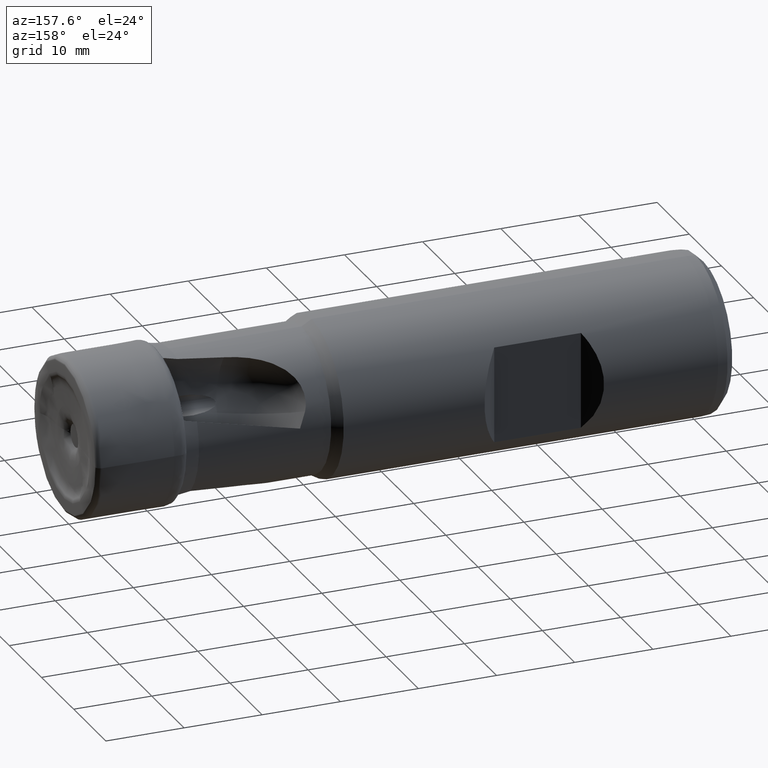
[diagram: clean part render]
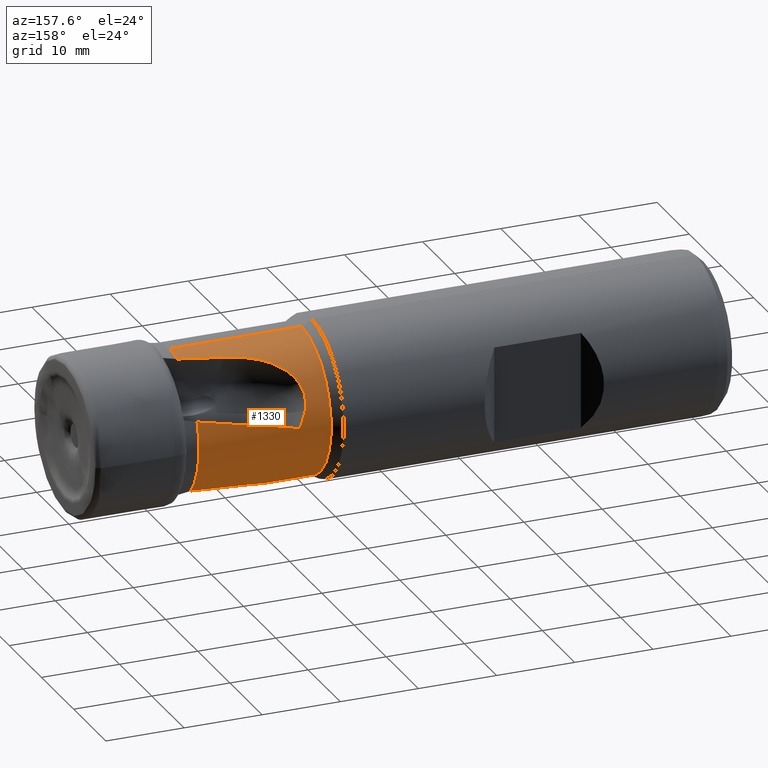
[diagram: same view with one face highlighted and labeled with its STEP entity id]
A machine part, auxiliary view. The second image highlights one B-rep face of the part: STEP entity #1330.
In plain terms, the highlighted cylindrical surface (partial cylindrical patch) has radius 9.25 mm, axis along (1, -0, -0).
Its self-contained STEP definition (entity closure, byte-faithful):
#1 = CIRCLE ( 'NONE', #1663, 9.250000000000001800 ) ;
#5 = CIRCLE ( 'NONE', #1665, 9.250000000000000000 ) ;
#19 = VECTOR ( 'NONE', #2129, 1000.000000000000000 ) ;
#42 = LINE ( 'NONE', #2128, #19 ) ;
#143 = VERTEX_POINT ( 'NONE', #2216 ) ;
#144 = VERTEX_POINT ( 'NONE', #2215 ) ;
#169 = VERTEX_POINT ( 'NONE', #2204 ) ;
#249 = VERTEX_POINT ( 'NONE', #2171 ) ;
#256 = VERTEX_POINT ( 'NONE', #2162 ) ;
#260 = ORIENTED_EDGE ( 'NONE', *, *, #286, .T. ) ;
#280 = EDGE_CURVE ( 'NONE', #293, #249, #1, .T. ) ;
#281 = EDGE_CURVE ( 'NONE', #144, #169, #42, .T. ) ;
#283 = EDGE_CURVE ( 'NONE', #400, #406, #3321, .T. ) ;
#284 = EDGE_CURVE ( 'NONE', #381, #169, #3417, .T. ) ;
#286 = EDGE_CURVE ( 'NONE', #144, #440, #5, .T. ) ;
#293 = VERTEX_POINT ( 'NONE', #2076 ) ;
#380 = ORIENTED_EDGE ( 'NONE', *, *, #5047, .F. ) ;
#381 = VERTEX_POINT ( 'NONE', #1947 ) ;
#383 = ORIENTED_EDGE ( 'NONE', *, *, #284, .T. ) ;
#389 = ORIENTED_EDGE ( 'NONE', *, *, #283, .T. ) ;
#400 = VERTEX_POINT ( 'NONE', #2295 ) ;
#406 = VERTEX_POINT ( 'NONE', #1946 ) ;
#416 = ORIENTED_EDGE ( 'NONE', *, *, #3802, .T. ) ;
#426 = ORIENTED_EDGE ( 'NONE', *, *, #1657, .F. ) ;
#430 = ORIENTED_EDGE ( 'NONE', *, *, #1653, .F. ) ;
#437 = VERTEX_POINT ( 'NONE', #2053 ) ;
#440 = VERTEX_POINT ( 'NONE', #1952 ) ;
#447 = ORIENTED_EDGE ( 'NONE', *, *, #5040, .T. ) ;
#448 = ORIENTED_EDGE ( 'NONE', *, *, #280, .F. ) ;
#479 = ORIENTED_EDGE ( 'NONE', *, *, #281, .F. ) ;
#483 = ORIENTED_EDGE ( 'NONE', *, *, #5044, .F. ) ;
#1022 = DIRECTION ( 'NONE',  ( 1.000000000000000000, -0.0000000000000000000, -0.0000000000000000000 ) ) ;
#1026 = CARTESIAN_POINT ( 'NONE',  ( 0.0000000000000000000, 0.0000000000000000000, 0.0000000000000000000 ) ) ;
#1027 = DIRECTION ( 'NONE',  ( 0.0000000000000000000, 0.0000000000000000000, -1.000000000000000000 ) ) ;
#1330 = ADVANCED_FACE ( 'NONE', ( #5077 ), #5073, .T. ) ;
#1606 = CARTESIAN_POINT ( 'NONE',  ( -26.54945737962980700, 8.917788416002267100, 2.456735591681937800 ) ) ;
#1609 = CARTESIAN_POINT ( 'NONE',  ( -26.32688608731626400, 9.097817253906917800, 1.803242765403043200 ) ) ;
#1611 = CARTESIAN_POINT ( 'NONE',  ( -26.07041568643023800, 9.202240444450760400, 1.140874201251209000 ) ) ;
#1612 = CARTESIAN_POINT ( 'NONE',  ( -25.77262820655407800, 9.236827555946195600, 0.4934741145317769200 ) ) ;
#1619 = CARTESIAN_POINT ( 'NONE',  ( -18.40126246938588000, 5.846790056682855200, -7.167813197417638400 ) ) ;
#1620 = CARTESIAN_POINT ( 'NONE',  ( -16.54807618838608700, 6.119702807297353600, -6.945198082781325300 ) ) ;
#1625 = CARTESIAN_POINT ( 'NONE',  ( -14.69325504867556000, 6.372027151349398000, -6.713224279148426500 ) ) ;
#1626 = CARTESIAN_POINT ( 'NONE',  ( -12.83564090980895700, 6.601800531473158700, -6.479099454603310300 ) ) ;
#1627 = CARTESIAN_POINT ( 'NONE',  ( -17.33695524366237700, 8.984366226036176100, 2.403632261263368700 ) ) ;
#1628 = CARTESIAN_POINT ( 'NONE',  ( -12.83564090980894600, 8.638983179848455800, 3.306126074168268300 ) ) ;
#1633 = CARTESIAN_POINT ( 'NONE',  ( -21.68450929364692200, 9.185275501043204100, 1.458423292758688400 ) ) ;
#1634 = CARTESIAN_POINT ( 'NONE',  ( -25.77262820655407800, 9.236827555946195600, 0.4934741145317769200 ) ) ;
#1653 = EDGE_CURVE ( 'NONE', #437, #143, #5007, .T. ) ;
#1657 = EDGE_CURVE ( 'NONE', #400, #437, #3289, .T. ) ;
#1663 = AXIS2_PLACEMENT_3D ( 'NONE', #2127, #2126, #2125 ) ;
#1665 = AXIS2_PLACEMENT_3D ( 'NONE', #2072, #2071, #2070 ) ;
#1744 = AXIS2_PLACEMENT_3D ( 'NONE', #1026, #1022, #1027 ) ;
#1773 = AXIS2_PLACEMENT_3D ( 'NONE', #2762, #2763, #2764 ) ;
#1803 = VECTOR ( 'NONE', #3701, 1000.000000000000000 ) ;
#1804 = LINE ( 'NONE', #3700, #1803 ) ;
#1946 = CARTESIAN_POINT ( 'NONE',  ( -26.54945737962980700, 8.917788416002267100, 2.456735591681937800 ) ) ;
#1947 = CARTESIAN_POINT ( 'NONE',  ( -18.40126246938588000, 5.846790056682855200, -7.167813197417638400 ) ) ;
#1952 = CARTESIAN_POINT ( 'NONE',  ( -29.75175681356646300, 0.0000000000000000000, 9.250000000000000000 ) ) ;
#2053 = CARTESIAN_POINT ( 'NONE',  ( -12.83564090980890700, 2.466131658906649500, 8.915194593554289800 ) ) ;
#2062 = CARTESIAN_POINT ( 'NONE',  ( -26.17055130171171500, 1.757036192353169700, -9.083840923686510700 ) ) ;
#2063 = CARTESIAN_POINT ( 'NONE',  ( -25.93261227172110500, 2.152098331471847400, -8.998434023748624000 ) ) ;
#2064 = CARTESIAN_POINT ( 'NONE',  ( -25.80086979409151500, 2.342702595824770500, -8.950371926566843300 ) ) ;
#2065 = CARTESIAN_POINT ( 'NONE',  ( -26.54229555617866200, 0.9117690028339314700, -9.207754151868655900 ) ) ;
#2066 = CARTESIAN_POINT ( 'NONE',  ( -26.46271753189393600, 1.130218561784935600, -9.183176003582470800 ) ) ;
#2067 = CARTESIAN_POINT ( 'NONE',  ( -26.27685627256711600, 1.552858038077056900, -9.121225105420627700 ) ) ;
#2070 = DIRECTION ( 'NONE',  ( 0.0000000000000000000, 0.0000000000000000000, -1.000000000000000000 ) ) ;
#2071 = DIRECTION ( 'NONE',  ( 1.000000000000000000, -0.0000000000000000000, -0.0000000000000000000 ) ) ;
#2072 = CARTESIAN_POINT ( 'NONE',  ( -29.75175681356646300, 0.0000000000000000000, 0.0000000000000000000 ) ) ;
#2073 = CARTESIAN_POINT ( 'NONE',  ( -26.75206468260855900, -9.604079684311097000E-012, -9.250000000000007100 ) ) ;
#2074 = CARTESIAN_POINT ( 'NONE',  ( -26.72025319590617100, 0.2300533868990265500, -9.250000000000250500 ) ) ;
#2075 = CARTESIAN_POINT ( 'NONE',  ( -26.67190409355766400, 0.4588839613856604000, -9.241400583556920600 ) ) ;
#2076 = CARTESIAN_POINT ( 'NONE',  ( -12.83564090980895700, 6.601800531473158700, -6.479099454603310300 ) ) ;
#2080 = CARTESIAN_POINT ( 'NONE',  ( -21.97913515038114000, 5.040807186544429700, -7.758509129815848800 ) ) ;
#2081 = CARTESIAN_POINT ( 'NONE',  ( -21.54516826928029300, 5.190885418687246400, -7.657783436623468300 ) ) ;
#2082 = CARTESIAN_POINT ( 'NONE',  ( -20.23101433853255300, 5.574586172247549600, -7.388115008366130900 ) ) ;
#2083 = CARTESIAN_POINT ( 'NONE',  ( -23.99682511240001000, 4.044654817346456700, -8.322749948183325600 ) ) ;
#2084 = CARTESIAN_POINT ( 'NONE',  ( -23.22193452304659200, 4.496608426932708900, -8.087515808102461200 ) ) ;
#2085 = CARTESIAN_POINT ( 'NONE',  ( -22.81747675783204300, 4.693500427975266100, -7.973409229554811800 ) ) ;
#2087 = CARTESIAN_POINT ( 'NONE',  ( -18.40126246938588000, 5.846790056682855200, -7.167813197417638400 ) ) ;
#2088 = CARTESIAN_POINT ( 'NONE',  ( -25.38057998672353900, 2.882008508631431500, -8.797509832993423400 ) ) ;
#2089 = CARTESIAN_POINT ( 'NONE',  ( -25.06406165153427400, 3.204130577482530400, -8.683063987025159100 ) ) ;
#2090 = CARTESIAN_POINT ( 'NONE',  ( -24.36902345370857900, 3.788358321912903100, -8.444548193072561700 ) ) ;
#2092 = CARTESIAN_POINT ( 'NONE',  ( -26.54945737962980700, 8.917788416002267100, 2.456735591681937800 ) ) ;
#2093 = CARTESIAN_POINT ( 'NONE',  ( -26.63779299416905000, 8.846337341309224600, 2.716098287592572100 ) ) ;
#2094 = CARTESIAN_POINT ( 'NONE',  ( -26.70296655543082700, 8.762595507733397700, 2.975991929284973900 ) ) ;
#2095 = CARTESIAN_POINT ( 'NONE',  ( -26.78604298785165800, 8.568299654683867700, 3.496262150191700200 ) ) ;
#2096 = CARTESIAN_POINT ( 'NONE',  ( -26.80345041357402300, 8.456614968346889000, 3.758458470556016500 ) ) ;
#2097 = CARTESIAN_POINT ( 'NONE',  ( -26.78864023280747400, 8.214712087319053800, 4.261320466735299700 ) ) ;
#2098 = CARTESIAN_POINT ( 'NONE',  ( -26.75715640184995800, 8.083739271516941800, 4.504527652532212700 ) ) ;
#2099 = CARTESIAN_POINT ( 'NONE',  ( -26.64712398514028600, 7.802870191118449500, 4.975221277777271700 ) ) ;
#2100 = CARTESIAN_POINT ( 'NONE',  ( -26.56747593349789600, 7.651847587046918700, 5.203856679756261100 ) ) ;
#2101 = CARTESIAN_POINT ( 'NONE',  ( -26.36927220525358700, 7.345601019041840400, 5.627880729714439300 ) ) ;
#2102 = CARTESIAN_POINT ( 'NONE',  ( -26.25040542738452500, 7.189008871590018200, 5.825836438635255000 ) ) ;
#2103 = CARTESIAN_POINT ( 'NONE',  ( -25.97615881125228300, 6.871371725861830100, 6.197295327040408500 ) ) ;
#2104 = CARTESIAN_POINT ( 'NONE',  ( -25.81995449291103700, 6.709824655831338800, 6.371079663424411300 ) ) ;
#2105 = CARTESIAN_POINT ( 'NONE',  ( -25.48337767336437700, 6.394455513554988500, 6.687551246522787100 ) ) ;
#2106 = CARTESIAN_POINT ( 'NONE',  ( -25.30200227341637000, 6.239355989200802800, 6.831808197320643000 ) ) ;
#2107 = CARTESIAN_POINT ( 'NONE',  ( -24.91573778562565900, 5.935689072149424200, 7.097236197543334200 ) ) ;
#2108 = CARTESIAN_POINT ( 'NONE',  ( -24.70982264072666400, 5.786462420964905800, 7.218880960692844800 ) ) ;
#2109 = CARTESIAN_POINT ( 'NONE',  ( -24.06635775241969100, 5.355356084662221700, 7.550776112562356700 ) ) ;
#2110 = CARTESIAN_POINT ( 'NONE',  ( -23.60882171192452000, 5.093134523843412300, 7.726609725312454400 ) ) ;
#2111 = CARTESIAN_POINT ( 'NONE',  ( -22.88849283155659400, 4.736521557011402100, 7.946531810877054600 ) ) ;
#2112 = CARTESIAN_POINT ( 'NONE',  ( -22.64264712723649700, 4.623786349112742200, 8.012366752873536100 ) ) ;
#2113 = CARTESIAN_POINT ( 'NONE',  ( -22.14035717563341500, 4.410593760040179700, 8.131671652783898800 ) ) ;
#2114 = CARTESIAN_POINT ( 'NONE',  ( -21.88315047039378300, 4.309887836994890100, 8.185254178827557700 ) ) ;
#2115 = CARTESIAN_POINT ( 'NONE',  ( -21.10560562607773600, 4.029591798377784300, 8.328803425247089700 ) ) ;
#2116 = CARTESIAN_POINT ( 'NONE',  ( -20.57754911305479000, 3.870488275503352500, 8.402523189877866700 ) ) ;
#2117 = CARTESIAN_POINT ( 'NONE',  ( -18.40126246938588000, 3.434530612514915300, 8.588742601318189800 ) ) ;
#2121 = CARTESIAN_POINT ( 'NONE',  ( -19.32984283643715200, 5.748866139712386100, -7.247689802497233400 ) ) ;
#2122 = CARTESIAN_POINT ( 'NONE',  ( -19.50345666890396500, 3.608090953276808000, 8.518494885842587300 ) ) ;
#2123 = CARTESIAN_POINT ( 'NONE',  ( -18.95740606019915500, 3.504805332754956600, 8.560640620719391700 ) ) ;
#2125 = DIRECTION ( 'NONE',  ( 0.0000000000000000000, 0.0000000000000000000, -1.000000000000000000 ) ) ;
#2126 = DIRECTION ( 'NONE',  ( 1.000000000000000000, -0.0000000000000000000, -0.0000000000000000000 ) ) ;
#2127 = CARTESIAN_POINT ( 'NONE',  ( -12.83564090980896000, 0.0000000000000000000, 0.0000000000000000000 ) ) ;
#2128 = CARTESIAN_POINT ( 'NONE',  ( 0.0000000000000000000, 0.0000000000000000000, -9.250000000000001800 ) ) ;
#2129 = DIRECTION ( 'NONE',  ( 1.000000000000000000, -0.0000000000000000000, -0.0000000000000000000 ) ) ;
#2162 = CARTESIAN_POINT ( 'NONE',  ( -25.77262820655407800, 9.236827555946195600, 0.4934741145317769200 ) ) ;
#2171 = CARTESIAN_POINT ( 'NONE',  ( -12.83564090980894600, 8.638983179848455800, 3.306126074168268300 ) ) ;
#2204 = CARTESIAN_POINT ( 'NONE',  ( -26.75206468260855900, -9.604079684311097000E-012, -9.250000000000007100 ) ) ;
#2215 = CARTESIAN_POINT ( 'NONE',  ( -29.75175681356646300, 1.178722544179327200E-015, -9.250000000000000000 ) ) ;
#2216 = CARTESIAN_POINT ( 'NONE',  ( -12.83564090980896000, 1.132798289211301900E-015, 9.250000000000001800 ) ) ;
#2295 = CARTESIAN_POINT ( 'NONE',  ( -18.40126246938588000, 3.434530612514915300, 8.588742601318189800 ) ) ;
#2761 = CARTESIAN_POINT ( 'NONE',  ( -16.54807618838606600, 3.107516319161100200, 8.719511522147326900 ) ) ;
#2762 = CARTESIAN_POINT ( 'NONE',  ( -12.83564090980896000, 0.0000000000000000000, 0.0000000000000000000 ) ) ;
#2763 = DIRECTION ( 'NONE',  ( 1.000000000000000000, -0.0000000000000000000, -0.0000000000000000000 ) ) ;
#2764 = DIRECTION ( 'NONE',  ( 0.0000000000000000000, 0.0000000000000000000, -1.000000000000000000 ) ) ;
#2770 = CARTESIAN_POINT ( 'NONE',  ( -18.40126246938588000, 3.434530612514915300, 8.588742601318189800 ) ) ;
#3289 = B_SPLINE_CURVE_WITH_KNOTS ( 'NONE', 3,
 ( #2770, #2761, #3420, #3421 ),
 .UNSPECIFIED., .F., .F.,
 ( 4, 4 ),
 ( 0.0000000000000000000, 0.005658666873125904600 ),
 .UNSPECIFIED. ) ;
#3291 = B_SPLINE_CURVE_WITH_KNOTS ( 'NONE', 3,
 ( #1619, #1620, #1625, #1626 ),
 .UNSPECIFIED., .F., .F.,
 ( 4, 4 ),
 ( 0.0000000000000000000, 0.005658666873125848200 ),
 .UNSPECIFIED. ) ;
#3321 = B_SPLINE_CURVE_WITH_KNOTS ( 'NONE', 3,
 ( #2117, #2123, #2122, #2116, #2115, #2114, #2113, #2112, #2111, #2110, #2109, #2108, #2107, #2106, #2105, #2104, #2103, #2102, #2101, #2100, #2099, #2098, #2097, #2096, #2095, #2094, #2093, #2092 ),
 .UNSPECIFIED., .F., .F.,
 ( 4, 2, 2, 2, 2, 2, 2, 2, 2, 2, 2, 2, 2, 4 ),
 ( 3.576224061345498000E-018, 0.001667447511210726800, 0.003334895022421450200, 0.004168618778026816400, 0.005002342533632182600, 0.006669790044842916800, 0.007503513800448282200, 0.008337237556053650100, 0.009170961311659018100, 0.01000468506726438600, 0.01083840882286975200, 0.01167213257847512000, 0.01250585633408048800, 0.01333958008968585600 ),
 .UNSPECIFIED. ) ;
#3365 = B_SPLINE_CURVE_WITH_KNOTS ( 'NONE', 3,
 ( #1606, #1609, #1611, #1612 ),
 .UNSPECIFIED., .F., .F.,
 ( 4, 4 ),
 ( 4.983385708973216800E-016, 0.002140108579208741200 ),
 .UNSPECIFIED. ) ;
#3381 =( BOUNDED_CURVE ( )  B_SPLINE_CURVE ( 3, ( #1628, #1627, #1633, #1634 ),
 .UNSPECIFIED., .F., .F. ) 
 B_SPLINE_CURVE_WITH_KNOTS ( ( 4, 4 ),
 ( 1.711438893934005500, 2.023567918883785400 ),
 .UNSPECIFIED. ) 
 CURVE ( )  GEOMETRIC_REPRESENTATION_ITEM ( )  RATIONAL_B_SPLINE_CURVE ( ( 1.000000000000000000, 0.9918977543086289200, 0.9918977543086289200, 1.000000000000000000 ) ) 
 REPRESENTATION_ITEM ( '' )  );
#3417 = B_SPLINE_CURVE_WITH_KNOTS ( 'NONE', 3,
 ( #2087, #2121, #2082, #2081, #2080, #2085, #2084, #2083, #2090, #2089, #2088, #2064, #2063, #2062, #2067, #2066, #2065, #2075, #2074, #2073 ),
 .UNSPECIFIED., .F., .F.,
 ( 4, 2, 2, 2, 2, 2, 2, 2, 2, 4 ),
 ( 0.0000000000000000000, 0.002784099372132575600, 0.004176149058198862900, 0.005568198744265148500, 0.006960248430331435900, 0.008352298116397722400, 0.009048322959430865600, 0.009744347802464010600, 0.01044037264549715600, 0.01113639748853029700 ),
 .UNSPECIFIED. ) ;
#3420 = CARTESIAN_POINT ( 'NONE',  ( -14.69325504867553900, 2.782298189544905500, 8.827736234399905500 ) ) ;
#3421 = CARTESIAN_POINT ( 'NONE',  ( -12.83564090980890700, 2.466131658906649500, 8.915194593554289800 ) ) ;
#3700 = CARTESIAN_POINT ( 'NONE',  ( 0.0000000000000000000, 1.132798289211301900E-015, 9.250000000000001800 ) ) ;
#3701 = DIRECTION ( 'NONE',  ( 1.000000000000000000, -0.0000000000000000000, -0.0000000000000000000 ) ) ;
#3802 = EDGE_CURVE ( 'NONE', #440, #143, #1804, .T. ) ;
#4046 = EDGE_LOOP ( 'NONE', ( #260, #416, #430, #426, #389, #447, #380, #448, #483, #383, #479 ) ) ;
#5007 = CIRCLE ( 'NONE', #1773, 9.250000000000001800 ) ;
#5040 = EDGE_CURVE ( 'NONE', #406, #256, #3365, .T. ) ;
#5044 = EDGE_CURVE ( 'NONE', #381, #293, #3291, .T. ) ;
#5047 = EDGE_CURVE ( 'NONE', #249, #256, #3381, .T. ) ;
#5073 = CYLINDRICAL_SURFACE ( 'NONE', #1744, 9.250000000000001800 ) ;
#5077 = FACE_OUTER_BOUND ( 'NONE', #4046, .T. ) ;